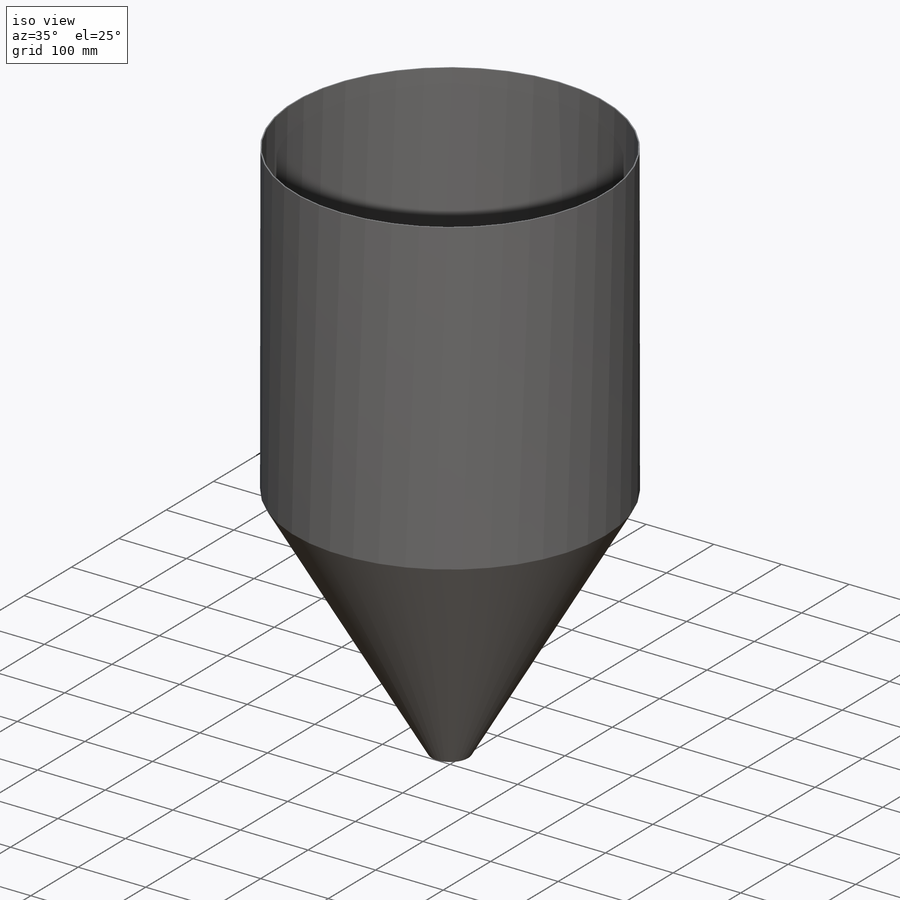
[diagram: iso view]
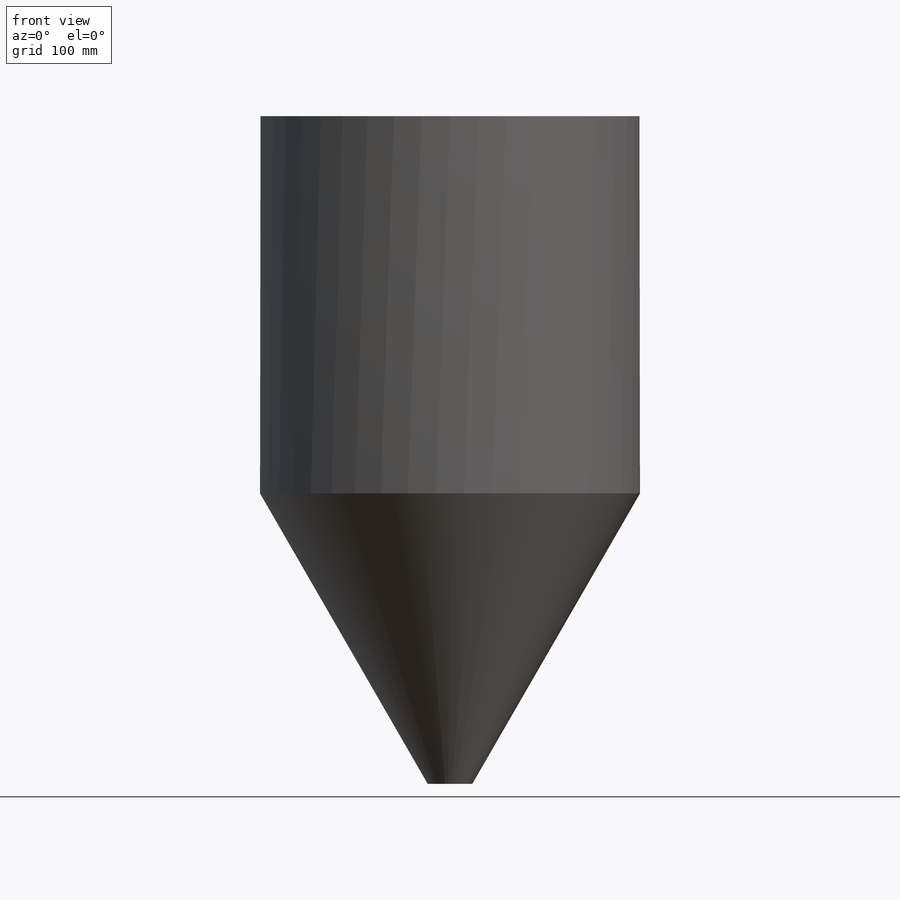
[diagram: front view]
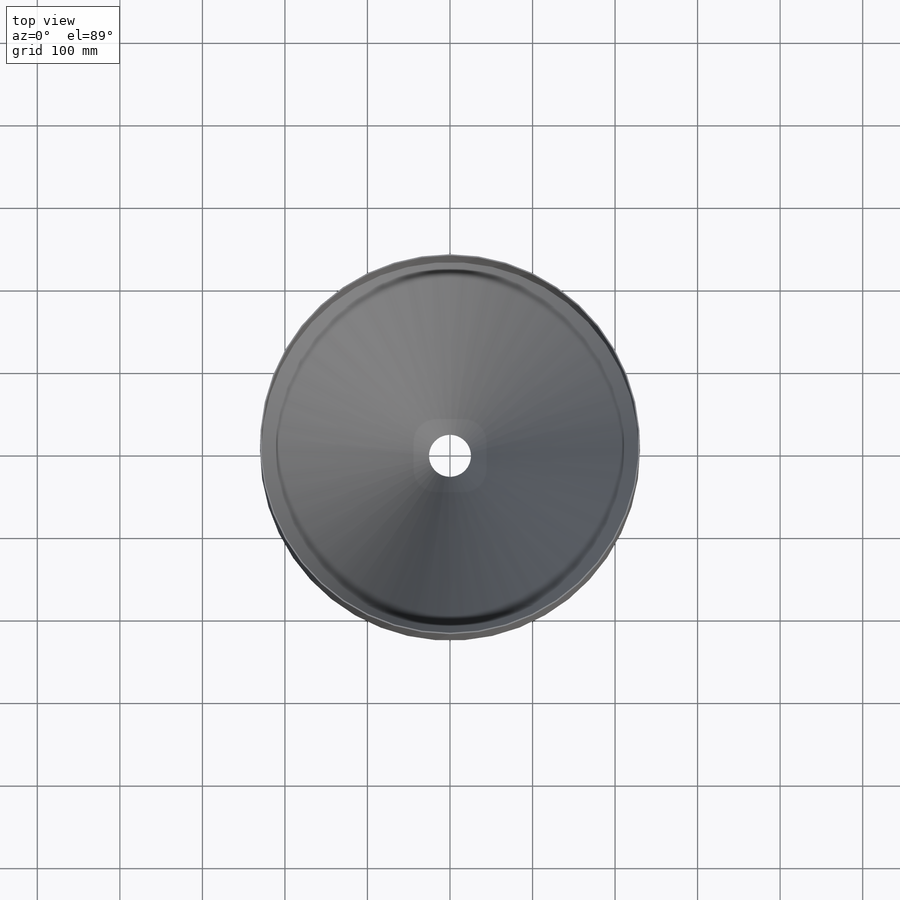
[diagram: top view]
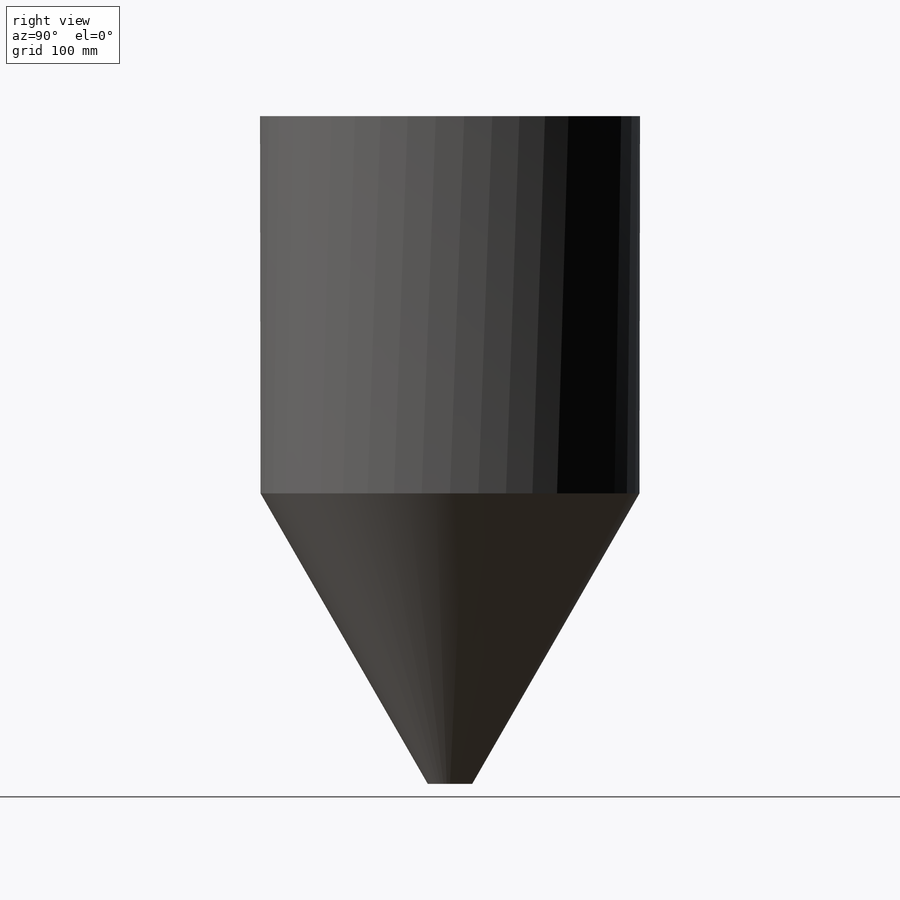
[diagram: right view]
SOLIDWORKS PART (.sldprt)
format: sldprt  version: not decoded by parser v0  size: 154,624 bytes
history: native  units: mm
features: sketch x3, material x1, extrude x1, revolve x1, cut_extrude x1 (+12 scaffold rows collapsed)
feature tree (19):
  scaffold x12  (default folders/planes/origin — collapsed)
  material  "AISI 304"
  sketch  "Sketch7"  dims[D1=457.2mm D2=1.5875mm]
  extrude  "Boss-Extrude1"  Depth=457.2mm
  sketch  "Sketch8"  dims[c1.D1=482.6mm c1.D2=457.2mm c1.D3=~425.023293mm c2.D1=457.2mm c2.D3=406.4mm]
  revolve  "Revolve1"  Angle=360deg
  sketch  "Sketch9"  dims[D1=21.59mm]
  cut_extrude  "Cut-Extrude1"  Depth=304.8mm
decode coverage: 6 of 6 modeling features carry decoded parameters
note: ~ marks probable driven/reference dimensions
note: suppression state not decoded; provenance and decode notes live in map.json
